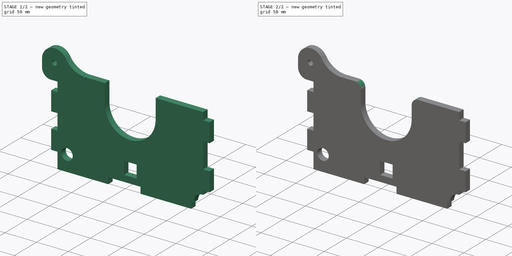
[diagram: build sequence overview — one tinted view per stage of 2, left to right]
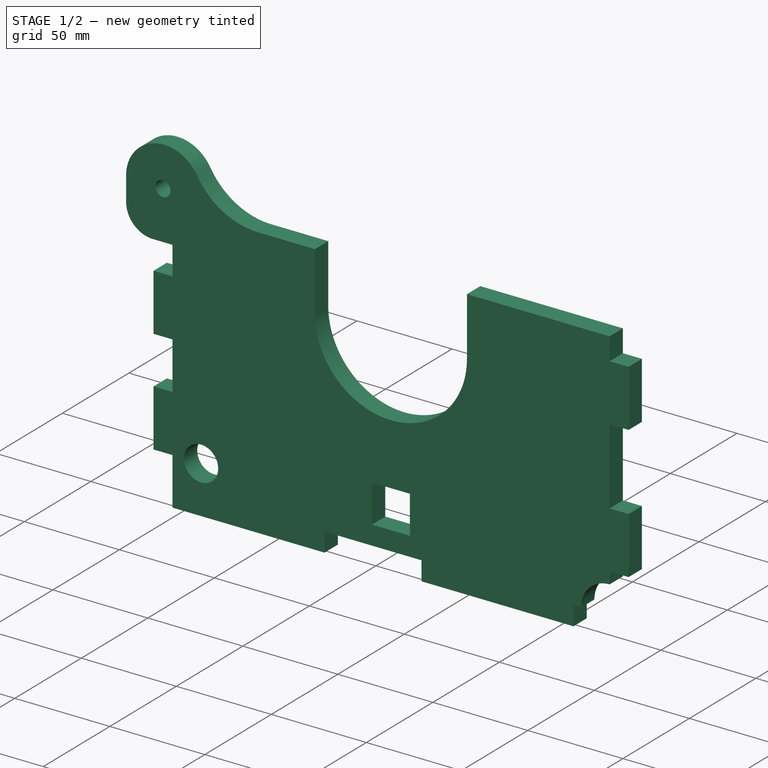
[diagram: stage 1 of 2 — iso view after this stage's code; geometry added in this stage tinted green]
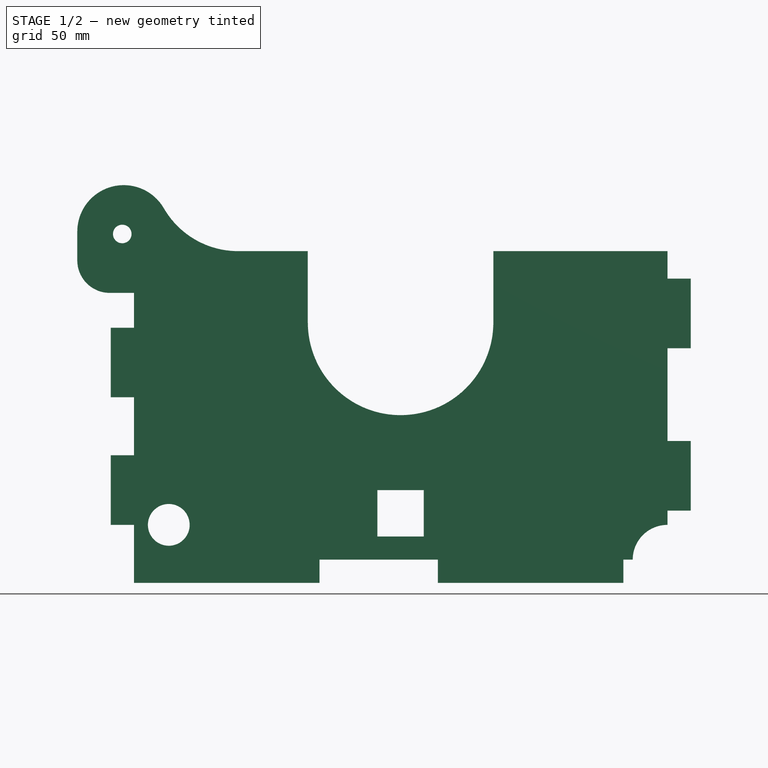
[diagram: stage 1 of 2 — front view after this stage's code; geometry added in this stage tinted green]
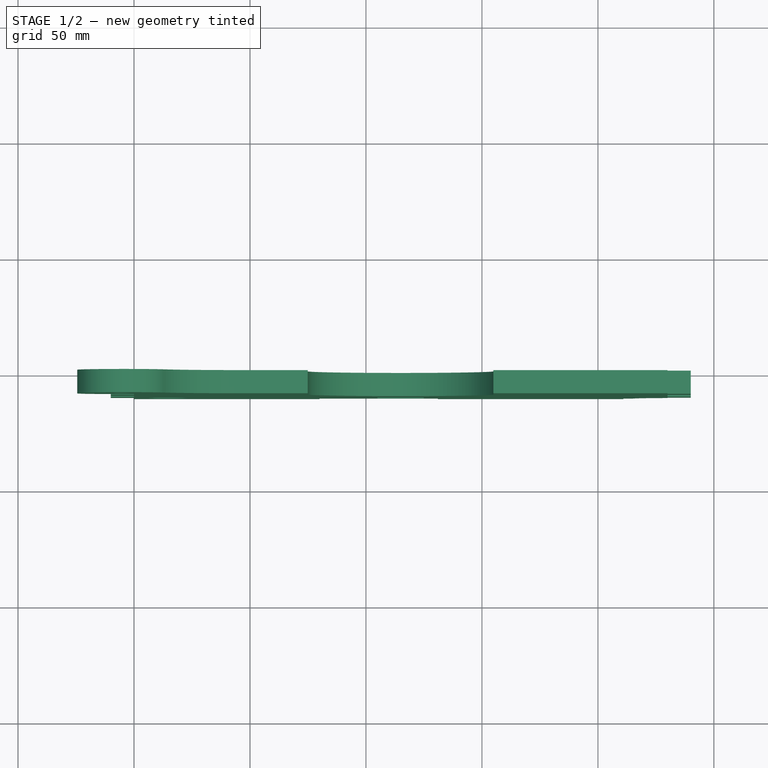
[diagram: stage 1 of 2 — top view after this stage's code; geometry added in this stage tinted green]
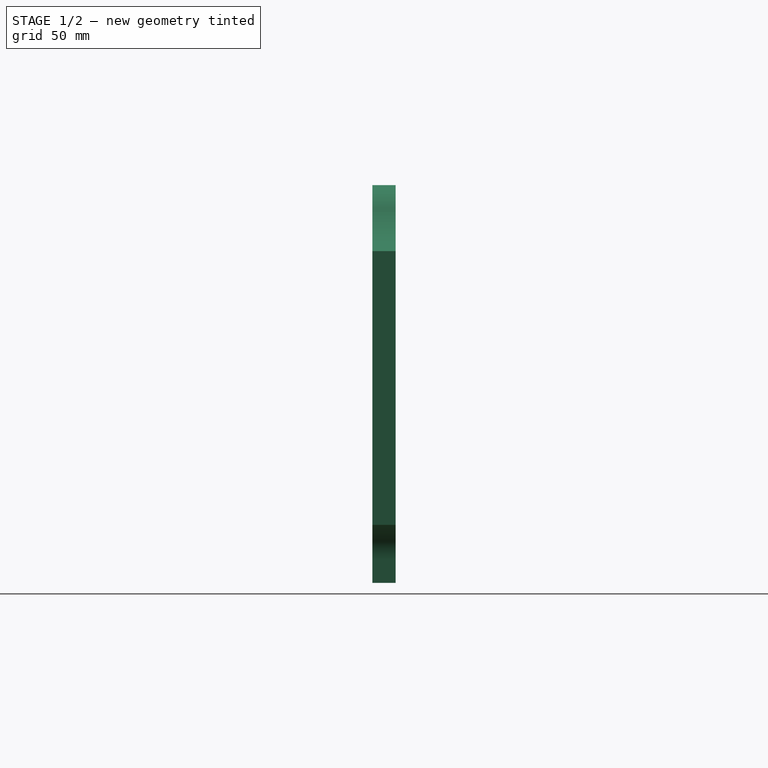
[diagram: stage 1 of 2 — right view after this stage's code; geometry added in this stage tinted green]
FCSTD DOCUMENT  (FreeCAD 0.19R19327 (Git))
Label: Soporte_Leva_2
License: All rights reserved
LicenseURL: http://en.wikipedia.org/wiki/All_rights_reserved
objects: Sketcher::SketchObject×3, PartDesign::Pad×1, PartDesign::Pocket×1, PartDesign::Fillet×1, PartDesign::Body×1
note: 9 computed .brp shape members not serialized (recipe doc carries the construction recipe); baked Part::Feature solids carry a one-line shape summary decoded from their .brp

FEATURE [Sketcher::SketchObject] Sketch
  MapMode = 5
  Placement = pos=(0,0,0) rot=(1,0,0;1.5708rad)
  Support = -> [XZ_Plane]
  sketch-geometry (34):
    g0: LineSegment StartX=0 StartY=0 StartZ=0 EndX=0 EndY=25 EndZ=0
    g1: LineSegment StartX=0 StartY=25 StartZ=0 EndX=-10 EndY=25 EndZ=0
    g2: LineSegment StartX=-10 StartY=25 StartZ=0 EndX=-10 EndY=55 EndZ=0
    g3: LineSegment StartX=-10 StartY=55 StartZ=0 EndX=0 EndY=55 EndZ=0
    g4: LineSegment StartX=0 StartY=55 StartZ=0 EndX=0 EndY=80 EndZ=0
    g5: LineSegment StartX=0 StartY=80 StartZ=0 EndX=-10 EndY=80 EndZ=0
    g6: LineSegment StartX=-10 StartY=80 StartZ=0 EndX=-10 EndY=110 EndZ=0
    g7: LineSegment StartX=-10 StartY=110 StartZ=0 EndX=0 EndY=110 EndZ=0
    g8: LineSegment StartX=0 StartY=110 StartZ=0 EndX=0 EndY=125 EndZ=0
    g9: LineSegment StartX=0 StartY=125 StartZ=0 EndX=-10.439 EndY=125 EndZ=0
    g10: LineSegment StartX=-24.439 StartY=139 StartZ=0 EndX=-24.439 EndY=151.456 EndZ=0
    g11: LineSegment StartX=44.899 StartY=143 StartZ=0 EndX=230 EndY=143 EndZ=0
    g12: LineSegment StartX=230 StartY=143 StartZ=0 EndX=230 EndY=131.156 EndZ=0
    g13: LineSegment StartX=230 StartY=131.156 StartZ=0 EndX=240 EndY=131.156 EndZ=0
    g14: LineSegment StartX=240 StartY=131.156 StartZ=0 EndX=240 EndY=101.156 EndZ=0
    g15: LineSegment StartX=240 StartY=101.156 StartZ=0 EndX=230 EndY=101.156 EndZ=0
    g16: LineSegment StartX=230 StartY=101.156 StartZ=0 EndX=230 EndY=61.156 EndZ=0
    g17: LineSegment StartX=230 StartY=61.156 StartZ=0 EndX=240 EndY=61.156 EndZ=0
    g18: LineSegment StartX=240 StartY=61.156 StartZ=0 EndX=240 EndY=31.156 EndZ=0
    g19: LineSegment StartX=240 StartY=31.156 StartZ=0 EndX=230 EndY=31.156 EndZ=0
    g20: LineSegment StartX=230 StartY=31.156 StartZ=0 EndX=230 EndY=25 EndZ=0
    g21: LineSegment StartX=215 StartY=10 StartZ=0 EndX=211 EndY=10 EndZ=0
    g22: LineSegment StartX=211 StartY=10 StartZ=0 EndX=211 EndY=0 EndZ=0
    g23: LineSegment StartX=211 StartY=0 StartZ=0 EndX=131 EndY=0 EndZ=0
    g24: LineSegment StartX=131 StartY=0 StartZ=0 EndX=131 EndY=10 EndZ=0
    g25: LineSegment StartX=131 StartY=10 StartZ=0 EndX=80 EndY=10 EndZ=0
    g26: LineSegment StartX=80 StartY=10 StartZ=0 EndX=80 EndY=0 EndZ=0
    g27: LineSegment StartX=80 StartY=0 StartZ=0 EndX=0 EndY=0 EndZ=0
    g28: Circle CenterX=15 CenterY=25 CenterZ=0 NormalX=0 NormalY=0 NormalZ=1 AngleXU=0 Radius=9
    g29: ArcOfCircle CenterX=-10.439 CenterY=139 CenterZ=0 NormalX=0 NormalY=0 NormalZ=1 AngleXU=0 Radius=14 StartAngle=3.14159 EndAngle=4.71239
    g30: ArcOfCircle CenterX=-4.439 CenterY=151.456 CenterZ=0 NormalX=0 NormalY=0 NormalZ=1 AngleXU=0 Radius=20 StartAngle=0.52449 EndAngle=3.14159
    g31: ArcOfCircle CenterX=44.899 CenterY=180 CenterZ=0 NormalX=0 NormalY=0 NormalZ=1 AngleXU=0 Radius=37 StartAngle=3.66608 EndAngle=4.71239
    g32: ArcOfCircle CenterX=230 CenterY=10 CenterZ=0 NormalX=0 NormalY=0 NormalZ=1 AngleXU=0 Radius=15 StartAngle=1.5708 EndAngle=3.14159
    g33: Circle CenterX=-5.055 CenterY=150.4 CenterZ=0 NormalX=0 NormalY=0 NormalZ=1 AngleXU=0 Radius=4
  constraints (100):
    c: Coincident(g-1,g0)
    c: PointOnObject(g0,g-2)
    c: Coincident(g0,g1)
    c: Horizontal(g1)
    c: Coincident(g1,g2)
    c: Vertical(g2)
    c: Coincident(g2,g3)
    c: Horizontal(g3)
    c: Coincident(g3,g4)
    c: PointOnObject(g4,g-2)
    c: Coincident(g4,g5)
    c: Coincident(g5,g6)
    c: Vertical(g6)
    c: Coincident(g6,g7)
    c: Horizontal(g7)
    c: Coincident(g7,g8)
    c: Vertical(g8)
    c: Coincident(g8,g9)
    c: Horizontal(g9)
    c: Vertical(g10)
    c: Horizontal(g11)
    c: Coincident(g11,g12)
    c: Coincident(g12,g13)
    c: Horizontal(g13)
    c: Coincident(g13,g14)
    c: Coincident(g14,g15)
    c: Coincident(g15,g16)
    c: Coincident(g16,g17)
    c: Horizontal(g17)
    c: Coincident(g17,g18)
    c: Vertical(g18)
    c: Coincident(g18,g19)
    c: Coincident(g19,g20)
    c: Coincident(g21,g22)
    c: PointOnObject(g22,g-1)
    c: Coincident(g22,g23)
    c: PointOnObject(g23,g-1)
    c: Coincident(g23,g24)
    c: Coincident(g24,g25)
    c: Horizontal(g25)
    c: Coincident(g25,g26)
    c: PointOnObject(g26,g-1)
    c: Coincident(g26,g27)
    c: Coincident(g27,g0)
    c: Vertical(g26)
    c: Vertical(g24)
    c: Vertical(g22)
    c: Horizontal(g21)
    c: Vertical(g20)
    c: Horizontal(g19)
    c: Vertical(g16)
    c: Horizontal(g15)
    c: Vertical(g14)
    c: Vertical(g12)
    c: Horizontal(g5)
    c: Tangent(g9,g29) = 1.5708
    c: Tangent(g10,g29) = 1.5708
    c: Tangent(g11,g31) = -1.5708
    c: Coincident(g32,g21)
    c: Coincident(g32,g20)
    c: Perpendicular(g32,g20)
    c: Perpendicular(g32,g21)
    c: Equal(g19,g17)
    c: Equal(g17,g15)
    c: Equal(g15,g13)
    c: Equal(g13,g7)
    c: Equal(g7,g5)
    c: Equal(g5,g3)
    c: Equal(g3,g1)
    c: DistanceX(g1,g1) = 10
    c: Equal(g22,g17)
    c: DistanceX(g21,g21) = 4
    c: DistanceY(g20,g20) = 6.156
    c: Equal(g6,g2)
    c: Equal(g2,g14)
    c: Equal(g14,g18)
    c: DistanceY(g2,g2) = 30
    c: Equal(g4,g0)
    c: DistanceY(g0,g0) = 25
    c: DistanceY(g8,g8) = 15
    c: Tangent(g30,g10) = 1.5708
    c: Tangent(g30,g31) = 1.5708
    c: DistanceY(g16,g16) = 40
    c: Radius(g32) = 15
    c: DistanceX(g25,g25) = 51
    c: DistanceY(g24,g24) = 10
    c: DistanceX(g0,g28) = 15
    c: DistanceY(g0,g28) = 25
    c: Radius(g28) = 9
    c: Radius(g29) = 14
    c: Radius(g30) = 20
    c: Radius(g31) = 37
    c: DistanceY(g10,g10) = 12.456
    c: DistanceX(g9,g9) = 10.439
    c: DistanceY(g12,g12) = 11.844
    c: Equal(g27,g23)
    c: DistanceX(g23,g23) = 80
    c: Radius(g33) = 4
    c: DistanceY(g8,g33) = 25.4
    c: DistanceX(g33,g8) = 5.055
FEATURE [PartDesign::Pad] Pad
  Length = 10
  Length2 = 100
  Placement = pos=(0,0,0) rot=(1,0,0;1.5708rad)
  Profile = -> Sketch
  Type = 0
FEATURE [Sketcher::SketchObject] Sketch001
  MapMode = 5
  Placement = pos=(0,0,0) rot=(1,0,0;1.5708rad)
  Support = -> [XZ_Plane]
  sketch-geometry (9):
    g0: ArcOfCircle CenterX=114.93 CenterY=112.3 CenterZ=0 NormalX=0 NormalY=0 NormalZ=1 AngleXU=0 Radius=40 StartAngle=3.14159 EndAngle=6.28319
    g1: LineSegment StartX=74.93 StartY=112.3 StartZ=0 EndX=74.93 EndY=155.12 EndZ=0
    g2: LineSegment StartX=154.93 StartY=112.3 StartZ=0 EndX=154.93 EndY=155.12 EndZ=0
    g3: LineSegment StartX=74.93 StartY=155.12 StartZ=0 EndX=154.93 EndY=155.12 EndZ=0
    g4: LineSegment StartX=104.93 StartY=40 StartZ=0 EndX=124.93 EndY=40 EndZ=0
    g5: LineSegment StartX=124.93 StartY=40 StartZ=0 EndX=124.93 EndY=20 EndZ=0
    g6: LineSegment StartX=124.93 StartY=20 StartZ=0 EndX=104.93 EndY=20 EndZ=0
    g7: LineSegment StartX=104.93 StartY=20 StartZ=0 EndX=104.93 EndY=40 EndZ=0
    g8: LineSegment [constr] StartX=114.93 StartY=112.3 StartZ=0 EndX=114.93 EndY=0 EndZ=0
  constraints (25):
    c: Radius(g0) = 40
    c: DistanceX(g-1,g0) = 114.93
    c: DistanceY(g-1,g0) = 112.3
    c: Vertical(g1)
    c: Vertical(g2)
    c: Tangent(g1,g0) = 1.5708
    c: Tangent(g2,g0) = -1.5708
    c: Coincident(g3,g1)
    c: Coincident(g3,g2)
    c: Horizontal(g3)
    c: Coincident(g4,g5)
    c: Coincident(g5,g6)
    c: Coincident(g6,g7)
    c: Coincident(g7,g4)
    c: Horizontal(g4)
    c: Horizontal(g6)
    c: Vertical(g5)
    c: Vertical(g7)
    c: Equal(g4,g7)
    c: DistanceX(g4,g4) = 20
    c: DistanceY(g-1,g5) = 20
    c: Coincident(g8,g0)
    c: PointOnObject(g8,g-1)
    c: Symmetric(g4,g4,g8)
    c: DistanceY(g1,g1) = 42.82
FEATURE [Sketcher::SketchObject] CopySketch001
  Placement = pos=(0,0,0) rot=(1,0,0;1.5708rad)
  sketch-geometry (9):
    g0: ArcOfCircle CenterX=114.93 CenterY=112.3 CenterZ=0 NormalX=0 NormalY=0 NormalZ=1 AngleXU=0 Radius=40 StartAngle=3.14159 EndAngle=6.28319
    g1: LineSegment StartX=74.93 StartY=112.3 StartZ=0 EndX=74.93 EndY=155.12 EndZ=0
    g2: LineSegment StartX=154.93 StartY=112.3 StartZ=0 EndX=154.93 EndY=155.12 EndZ=0
    g3: LineSegment StartX=74.93 StartY=155.12 StartZ=0 EndX=154.93 EndY=155.12 EndZ=0
    g4: LineSegment StartX=104.93 StartY=40 StartZ=0 EndX=124.93 EndY=40 EndZ=0
    g5: LineSegment StartX=124.93 StartY=40 StartZ=0 EndX=124.93 EndY=20 EndZ=0
    g6: LineSegment StartX=124.93 StartY=20 StartZ=0 EndX=104.93 EndY=20 EndZ=0
    g7: LineSegment StartX=104.93 StartY=20 StartZ=0 EndX=104.93 EndY=40 EndZ=0
    g8: LineSegment [constr] StartX=114.93 StartY=112.3 StartZ=0 EndX=114.93 EndY=0 EndZ=0
  constraints (25):
    c: Radius(g0) = 40
    c: DistanceX(g-1,g0) = 114.93
    c: DistanceY(g-1,g0) = 112.3
    c: Vertical(g1)
    c: Vertical(g2)
    c: Tangent(g1,g0) = 1.5708
    c: Tangent(g2,g0) = -1.5708
    c: Coincident(g3,g1)
    c: Coincident(g3,g2)
    c: Horizontal(g3)
    c: Coincident(g4,g5)
    c: Coincident(g5,g6)
    c: Coincident(g6,g7)
    c: Coincident(g7,g4)
    c: Horizontal(g4)
    c: Horizontal(g6)
    c: Vertical(g5)
    c: Vertical(g7)
    c: Equal(g4,g7)
    c: DistanceX(g4,g4) = 20
    c: DistanceY(g-1,g5) = 20
    c: Coincident(g8,g0)
    c: PointOnObject(g8,g-1)
    c: Symmetric(g4,g4,g8)
    c: DistanceY(g1,g1) = 42.82
FEATURE [PartDesign::Pocket] Pocket
  BaseFeature = -> Pad
  Length = 5
  Length2 = 100
  Placement = pos=(0,0,0) rot=(1,0,0;1.5708rad)
  Profile = -> CopySketch001
  Reversed = true
  Type = 1
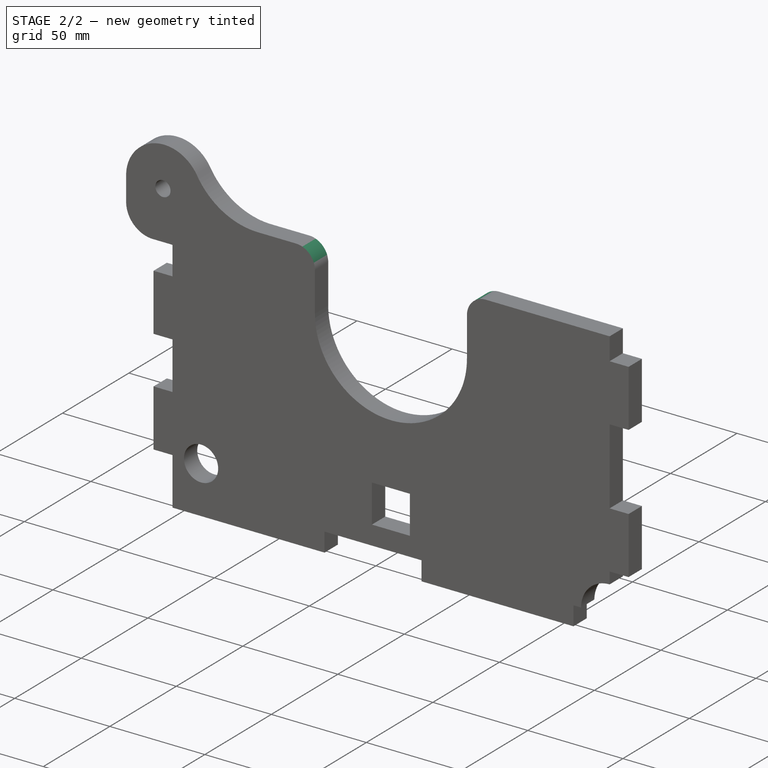
[diagram: stage 2 of 2 — iso view after this stage's code; geometry added in this stage tinted green]
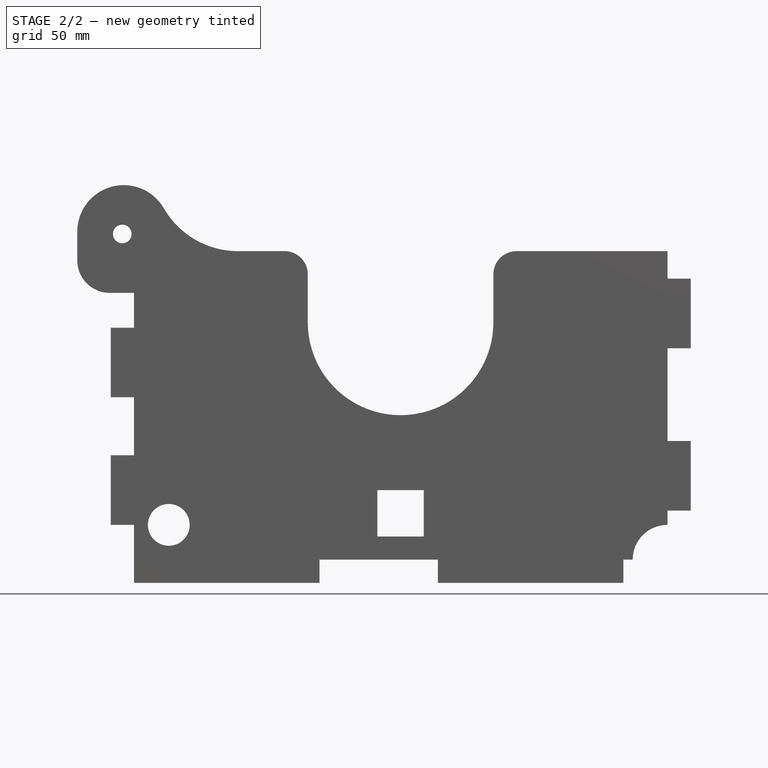
[diagram: stage 2 of 2 — front view after this stage's code; geometry added in this stage tinted green]
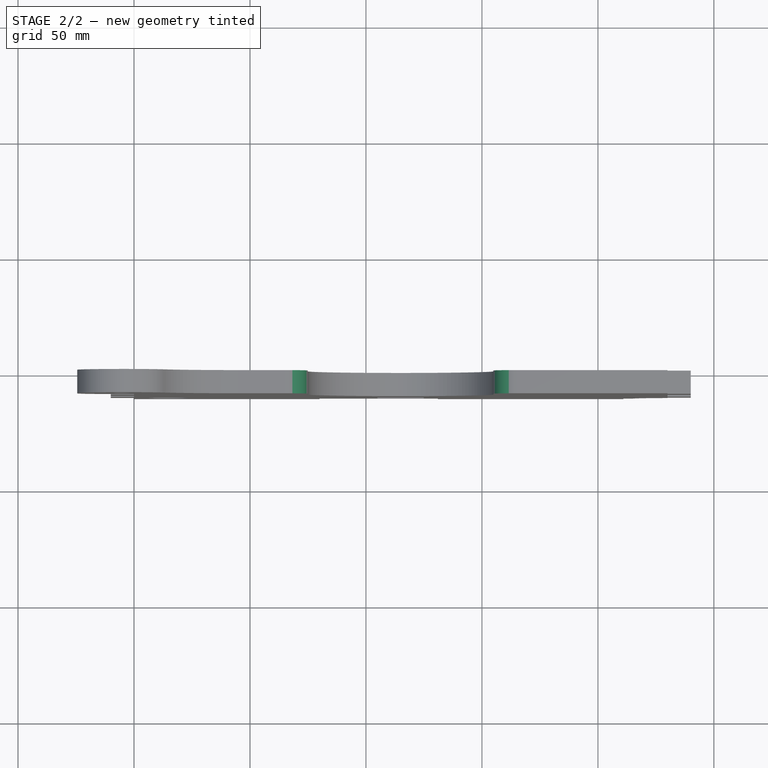
[diagram: stage 2 of 2 — top view after this stage's code; geometry added in this stage tinted green]
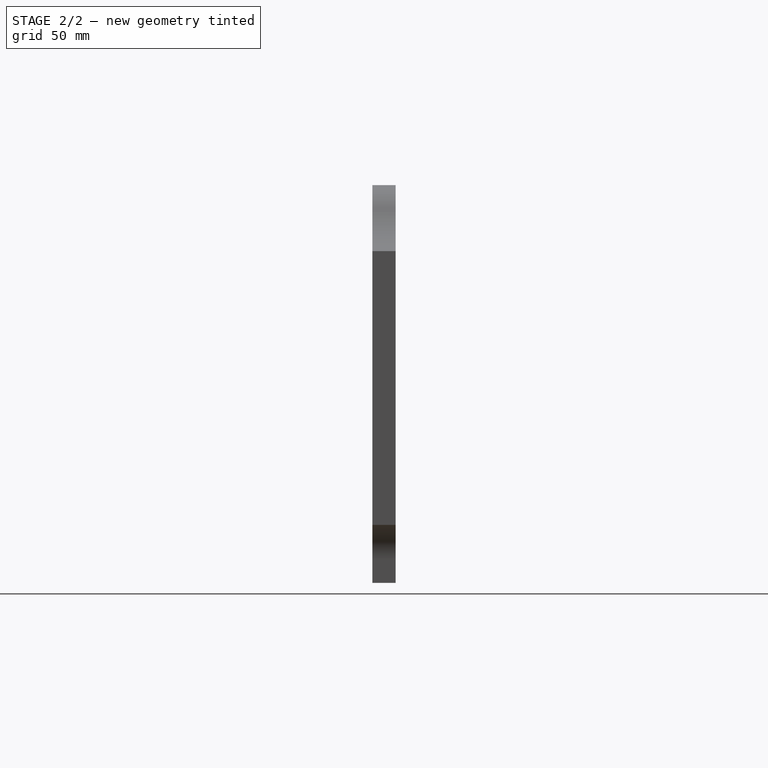
[diagram: stage 2 of 2 — right view after this stage's code; geometry added in this stage tinted green]
FEATURE [PartDesign::Fillet] Fillet
  Base = -> Pocket [Edge119,Edge9]
  BaseFeature = -> Pocket
  Placement = pos=(0,0,0) rot=(1,0,0;1.5708rad)
  Radius = 10
FEATURE [PartDesign::Body] Body
  Group = -> [Sketch,Pad,Pocket,Fillet]
  Origin = -> Origin
  Tip = -> Fillet
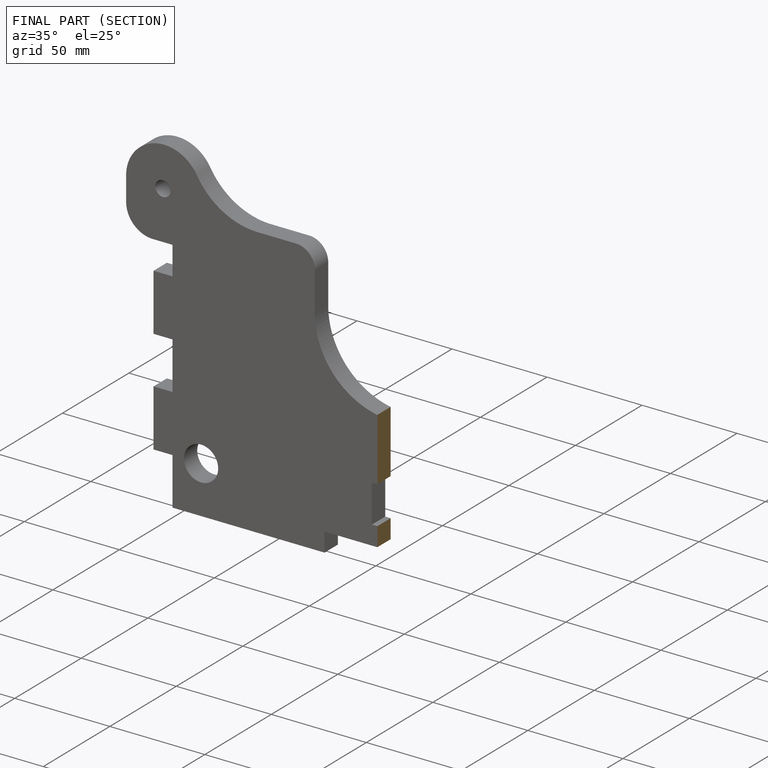
[diagram: finished part — half-section view (interior)]
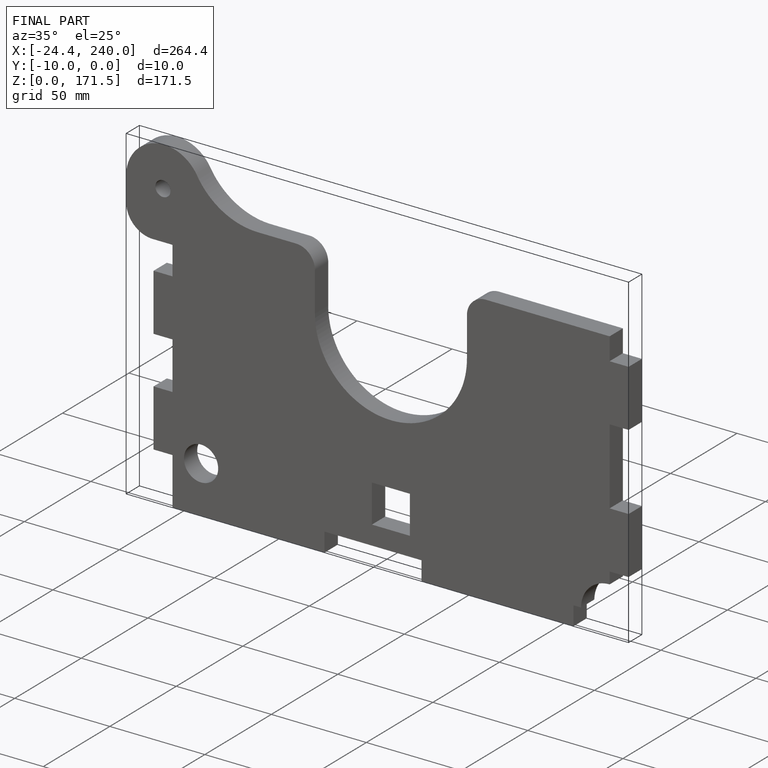
[diagram: finished part — iso view with bounding-box wireframe]
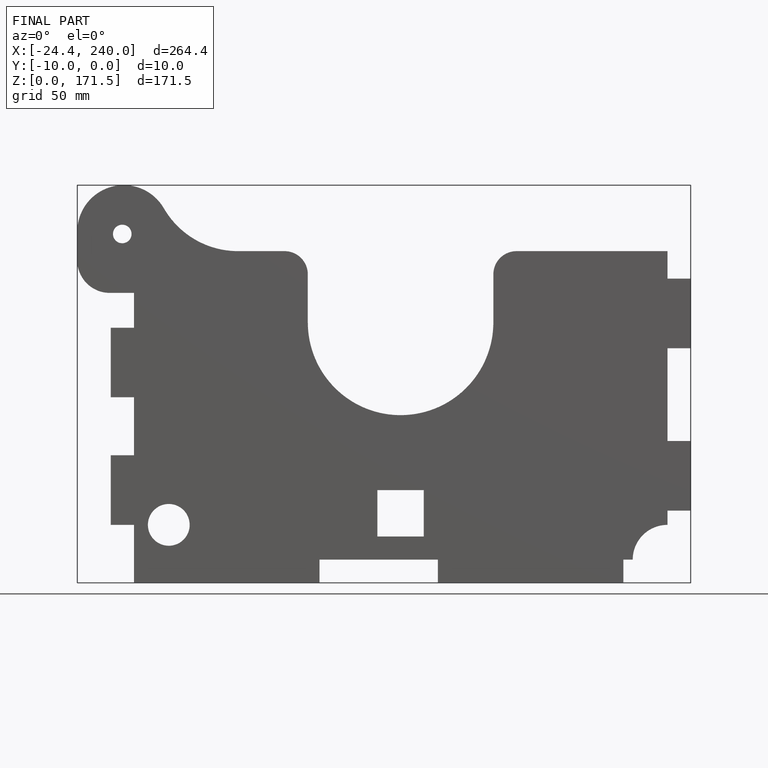
[diagram: finished part — front view with bounding-box wireframe]
